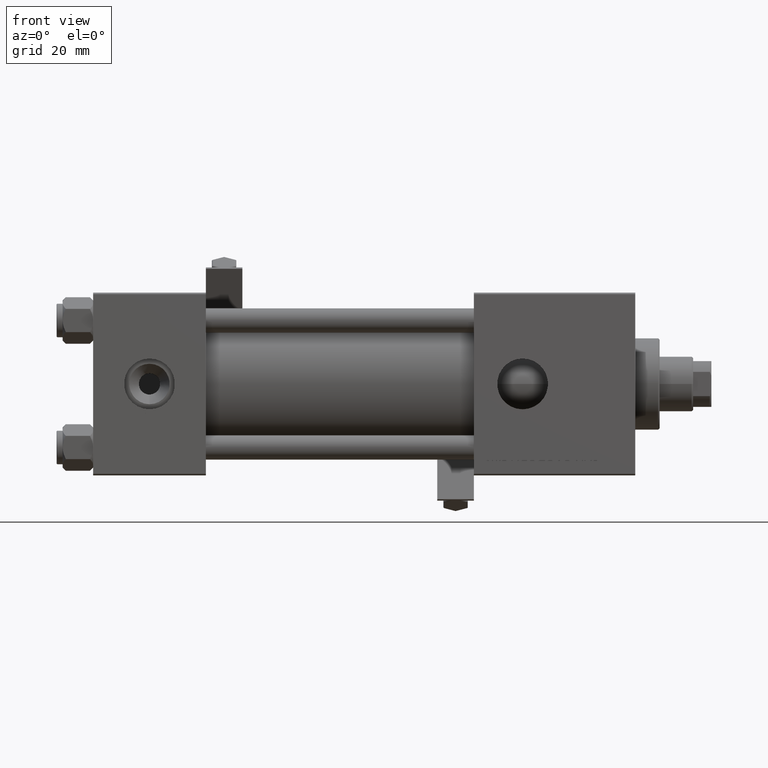
[diagram: clean part render]
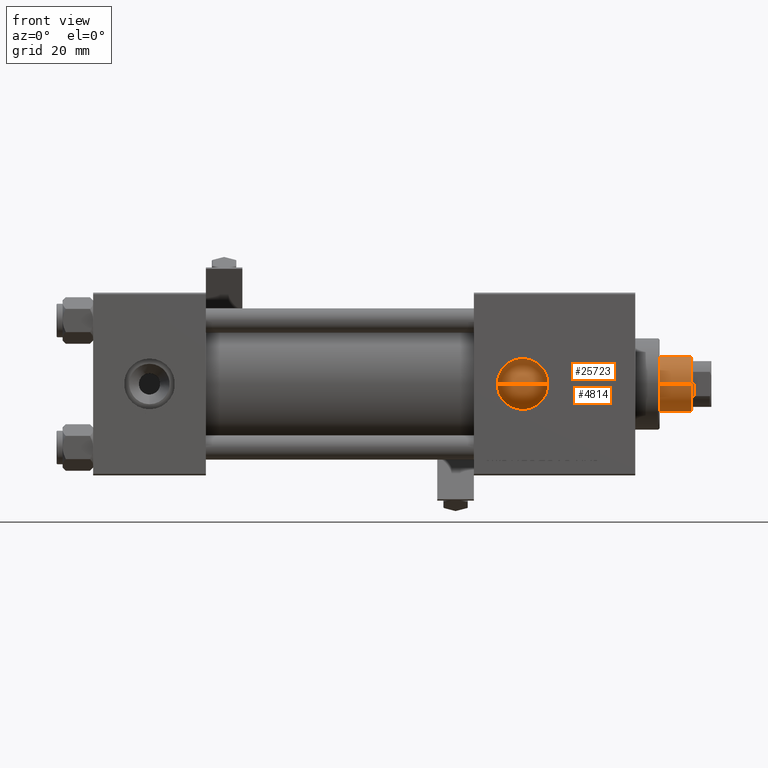
[diagram: same view with one multi-face feature highlighted, each face labeled with its STEP entity id]
A machine part, front view. The highlighted faces form ONE feature: a constant-radius fillet chain: 2 tangent blend faces with common blend radius 9 mm. The faces share edges in the B-rep.
Their STEP definitions:
[1] entity #4814 (Cylinder):
#828 = LINE ( 'NONE', #36004, #28251 ) ;
#1418 = EDGE_CURVE ( 'NONE', #28951, #44817, #34550, .T. ) ;
#1937 = AXIS2_PLACEMENT_3D ( 'NONE', #14226, #38497, #5339 ) ;
#4814 = ADVANCED_FACE ( 'NONE', ( #17753 ), #42545, .T. ) ;
#5339 = DIRECTION ( 'NONE',  ( -1.000000000000000000, 0.000000000000000000, 0.000000000000000000 ) ) ;
#5538 = VERTEX_POINT ( 'NONE', #13498 ) ;
#6108 = CIRCLE ( 'NONE', #42268, 9.000000000000000000 ) ;
#6315 = EDGE_LOOP ( 'NONE', ( #34052, #9736, #49458, #45143 ) ) ;
#9736 = ORIENTED_EDGE ( 'NONE', *, *, #42743, .T. ) ;
#11610 = CARTESIAN_POINT ( 'NONE',  ( -9.000000000000000000, 0.000000000000000000, 38.00000000000000000 ) ) ;
#11687 = CARTESIAN_POINT ( 'NONE',  ( 0.000000000000000000, 0.000000000000000000, 38.00000000000000000 ) ) ;
#11855 = CARTESIAN_POINT ( 'NONE',  ( 9.000000000000000000, 1.102182119232617517E-15, 38.00000000000000000 ) ) ;
#12164 = AXIS2_PLACEMENT_3D ( 'NONE', #11687, #15482, #18974 ) ;
#12762 = CARTESIAN_POINT ( 'NONE',  ( 0.000000000000000000, 0.000000000000000000, 159.5000000000000853 ) ) ;
#13490 = VERTEX_POINT ( 'NONE', #17657 ) ;
#13498 = CARTESIAN_POINT ( 'NONE',  ( -9.000000000000000000, 0.000000000000000000, 159.5000000000000853 ) ) ;
#14226 = CARTESIAN_POINT ( 'NONE',  ( 0.000000000000000000, 0.000000000000000000, 160.0000000000000000 ) ) ;
#15482 = DIRECTION ( 'NONE',  ( 0.000000000000000000, 0.000000000000000000, 1.000000000000000000 ) ) ;
#16306 = DIRECTION ( 'NONE',  ( -0.000000000000000000, -0.000000000000000000, -1.000000000000000000 ) ) ;
#16563 = DIRECTION ( 'NONE',  ( 0.000000000000000000, 0.000000000000000000, -1.000000000000000000 ) ) ;
#17657 = CARTESIAN_POINT ( 'NONE',  ( 9.000000000000000000, 1.102182119232617517E-15, 159.5000000000000853 ) ) ;
#17753 = FACE_OUTER_BOUND ( 'NONE', #6315, .T. ) ;
#18974 = DIRECTION ( 'NONE',  ( 1.000000000000000000, 0.000000000000000000, 0.000000000000000000 ) ) ;
#27062 = VECTOR ( 'NONE', #16306, 1000.000000000000000 ) ;
#28251 = VECTOR ( 'NONE', #49914, 1000.000000000000000 ) ;
#28951 = VERTEX_POINT ( 'NONE', #11855 ) ;
#32730 = DIRECTION ( 'NONE',  ( 1.000000000000000000, 0.000000000000000000, 0.000000000000000000 ) ) ;
#34052 = ORIENTED_EDGE ( 'NONE', *, *, #34610, .T. ) ;
#34550 = CIRCLE ( 'NONE', #12164, 9.000000000000000000 ) ;
#34610 = EDGE_CURVE ( 'NONE', #5538, #13490, #6108, .T. ) ;
#36004 = CARTESIAN_POINT ( 'NONE',  ( -9.000000000000000000, 0.000000000000000000, 160.0000000000000000 ) ) ;
#36802 = LINE ( 'NONE', #53236, #27062 ) ;
#38497 = DIRECTION ( 'NONE',  ( -0.000000000000000000, -0.000000000000000000, -1.000000000000000000 ) ) ;
#42268 = AXIS2_PLACEMENT_3D ( 'NONE', #12762, #16563, #32730 ) ;
#42545 = CYLINDRICAL_SURFACE ( 'NONE', #1937, 9.000000000000000000 ) ;
#42743 = EDGE_CURVE ( 'NONE', #13490, #28951, #36802, .T. ) ;
#44817 = VERTEX_POINT ( 'NONE', #11610 ) ;
#45143 = ORIENTED_EDGE ( 'NONE', *, *, #49407, .F. ) ;
#49407 = EDGE_CURVE ( 'NONE', #5538, #44817, #828, .T. ) ;
#49458 = ORIENTED_EDGE ( 'NONE', *, *, #1418, .T. ) ;
#49914 = DIRECTION ( 'NONE',  ( -0.000000000000000000, -0.000000000000000000, -1.000000000000000000 ) ) ;
#53236 = CARTESIAN_POINT ( 'NONE',  ( 9.000000000000000000, 1.102182119232617517E-15, 160.0000000000000000 ) ) ;
[2] entity #25723 (Cylinder):
#14 = DIRECTION ( 'NONE',  ( -0.000000000000000000, -0.000000000000000000, -1.000000000000000000 ) ) ;
#828 = LINE ( 'NONE', #36004, #28251 ) ;
#5298 = DIRECTION ( 'NONE',  ( 0.000000000000000000, 0.000000000000000000, -1.000000000000000000 ) ) ;
#5538 = VERTEX_POINT ( 'NONE', #13498 ) ;
#8117 = CARTESIAN_POINT ( 'NONE',  ( 0.000000000000000000, 0.000000000000000000, 160.0000000000000000 ) ) ;
#8488 = AXIS2_PLACEMENT_3D ( 'NONE', #8117, #14, #44521 ) ;
#9182 = ORIENTED_EDGE ( 'NONE', *, *, #42743, .F. ) ;
#10016 = ORIENTED_EDGE ( 'NONE', *, *, #13143, .T. ) ;
#10612 = CARTESIAN_POINT ( 'NONE',  ( 0.000000000000000000, 0.000000000000000000, 38.00000000000000000 ) ) ;
#11610 = CARTESIAN_POINT ( 'NONE',  ( -9.000000000000000000, 0.000000000000000000, 38.00000000000000000 ) ) ;
#11711 = EDGE_LOOP ( 'NONE', ( #9182, #10016, #15085, #27028 ) ) ;
#11855 = CARTESIAN_POINT ( 'NONE',  ( 9.000000000000000000, 1.102182119232617517E-15, 38.00000000000000000 ) ) ;
#13143 = EDGE_CURVE ( 'NONE', #13490, #5538, #14154, .T. ) ;
#13490 = VERTEX_POINT ( 'NONE', #17657 ) ;
#13498 = CARTESIAN_POINT ( 'NONE',  ( -9.000000000000000000, 0.000000000000000000, 159.5000000000000853 ) ) ;
#14154 = CIRCLE ( 'NONE', #44309, 9.000000000000000000 ) ;
#15085 = ORIENTED_EDGE ( 'NONE', *, *, #49407, .T. ) ;
#16220 = CYLINDRICAL_SURFACE ( 'NONE', #8488, 9.000000000000000000 ) ;
#16306 = DIRECTION ( 'NONE',  ( -0.000000000000000000, -0.000000000000000000, -1.000000000000000000 ) ) ;
#17451 = DIRECTION ( 'NONE',  ( 1.000000000000000000, 0.000000000000000000, 0.000000000000000000 ) ) ;
#17657 = CARTESIAN_POINT ( 'NONE',  ( 9.000000000000000000, 1.102182119232617517E-15, 159.5000000000000853 ) ) ;
#19178 = CIRCLE ( 'NONE', #33835, 9.000000000000000000 ) ;
#25723 = ADVANCED_FACE ( 'NONE', ( #40204 ), #16220, .T. ) ;
#27028 = ORIENTED_EDGE ( 'NONE', *, *, #39126, .T. ) ;
#27062 = VECTOR ( 'NONE', #16306, 1000.000000000000000 ) ;
#28251 = VECTOR ( 'NONE', #49914, 1000.000000000000000 ) ;
#28951 = VERTEX_POINT ( 'NONE', #11855 ) ;
#29840 = CARTESIAN_POINT ( 'NONE',  ( 0.000000000000000000, 0.000000000000000000, 159.5000000000000853 ) ) ;
#33835 = AXIS2_PLACEMENT_3D ( 'NONE', #10612, #51333, #39463 ) ;
#36004 = CARTESIAN_POINT ( 'NONE',  ( -9.000000000000000000, 0.000000000000000000, 160.0000000000000000 ) ) ;
#36802 = LINE ( 'NONE', #53236, #27062 ) ;
#39126 = EDGE_CURVE ( 'NONE', #44817, #28951, #19178, .T. ) ;
#39463 = DIRECTION ( 'NONE',  ( 1.000000000000000000, 0.000000000000000000, 0.000000000000000000 ) ) ;
#40204 = FACE_OUTER_BOUND ( 'NONE', #11711, .T. ) ;
#42743 = EDGE_CURVE ( 'NONE', #13490, #28951, #36802, .T. ) ;
#44309 = AXIS2_PLACEMENT_3D ( 'NONE', #29840, #5298, #17451 ) ;
#44521 = DIRECTION ( 'NONE',  ( -1.000000000000000000, 0.000000000000000000, 0.000000000000000000 ) ) ;
#44817 = VERTEX_POINT ( 'NONE', #11610 ) ;
#49407 = EDGE_CURVE ( 'NONE', #5538, #44817, #828, .T. ) ;
#49914 = DIRECTION ( 'NONE',  ( -0.000000000000000000, -0.000000000000000000, -1.000000000000000000 ) ) ;
#51333 = DIRECTION ( 'NONE',  ( 0.000000000000000000, 0.000000000000000000, 1.000000000000000000 ) ) ;
#53236 = CARTESIAN_POINT ( 'NONE',  ( 9.000000000000000000, 1.102182119232617517E-15, 160.0000000000000000 ) ) ;